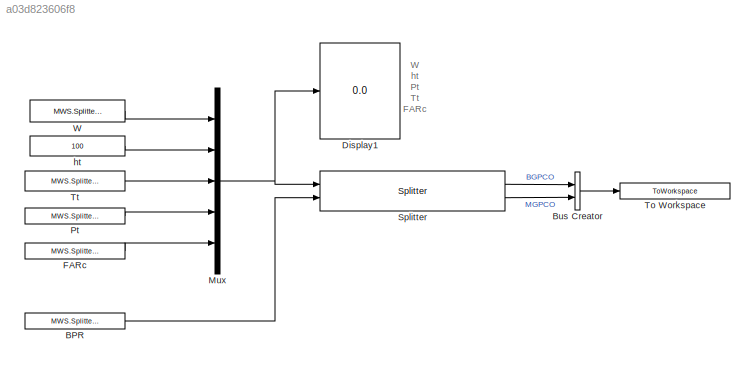
MODEL slx_a03d823606f8
KIND model
CONFIG AbsTol = auto
CONFIG EnableMultiTasking = on
CONFIG FixedStep = 1
CONFIG MaxStep = auto
CONFIG MinStep = auto
CONFIG RelTol = 1e-3
CONFIG SampleTimeConstraint = Unconstrained
CONFIG Solver = FixedStepDiscrete
CONFIG SolverName = FixedStepDiscrete
CONFIG StartTime = 0.0
CONFIG StopTime = 1
BLOCK [Constant] BPR
  Value = MWS.Splitter.BPR
BLOCK [BusCreator] Bus Creator
  DisplayOption = bar
  InheritFromInputs = on
  Inputs = 2
  Ports = [2, 1]
BLOCK [Display] Display1
  Decimation = 1
  Ports = [1]
BLOCK [Constant] FARc
  Value = MWS.Splitter.FARc
BLOCK [Mux] Mux
  DisplayOption = bar
  Inputs = 5
  Ports = [5, 1]
BLOCK [Constant] Pt
  Value = MWS.Splitter.Pt
BLOCK [Reference] Splitter  REF=Lib_Turbo_Splitter_TMATS/Splitter
  Ports = [2, 2]
  SourceBlock = Lib_Turbo_Splitter_TMATS/Splitter
  SourceType = T-MATS: Splitter Library Block
BLOCK [ToWorkspace] To Workspace
  MaxDataPoints = inf
  Ports = [1]
  SampleTime = -1
  VariableName = TB_Output
BLOCK [Constant] Tt
  Value = MWS.Splitter.Tt
BLOCK [Constant] W
  Value = MWS.Splitter.W
BLOCK [Constant] ht
  Value = 100
ANNOTATION (root): W ht Pt Tt FARc
LINE BPR:1 -> Splitter:2
LINE Bus Creator:1 -> To Workspace:1
LINE FARc:1 -> Mux:5
NET Mux:1 -> Display1:1, Splitter:1
LINE Pt:1 -> Mux:4
LINE Splitter:1 -> Bus Creator:1
LINE Splitter:2 -> Bus Creator:2
LINE Tt:1 -> Mux:3
LINE W:1 -> Mux:1
LINE ht:1 -> Mux:2
note: NET lines group one-source signal fan-out (src -> all destinations, sorted); 1:1 wires keep LINE
